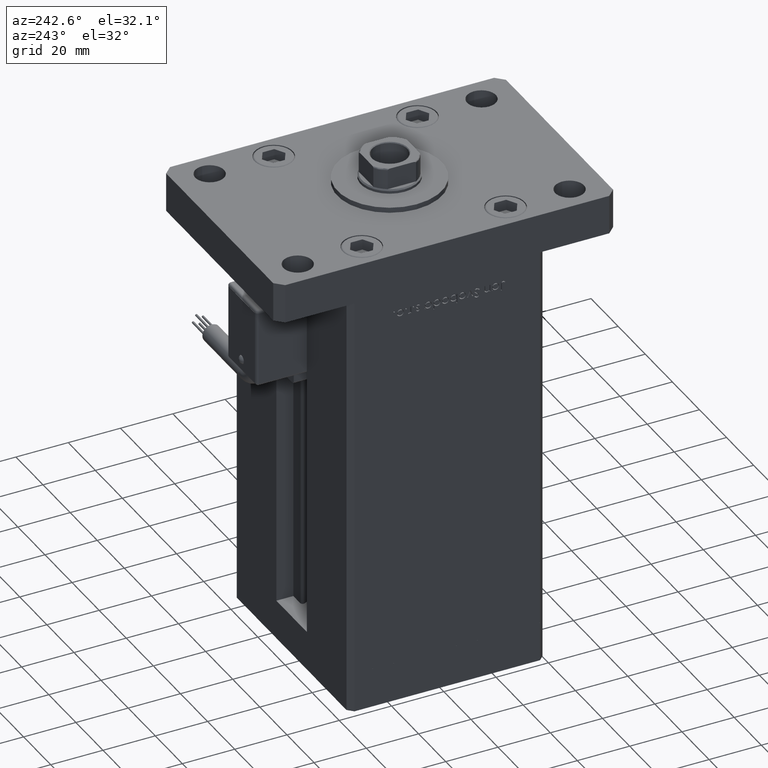
[diagram: clean part render]
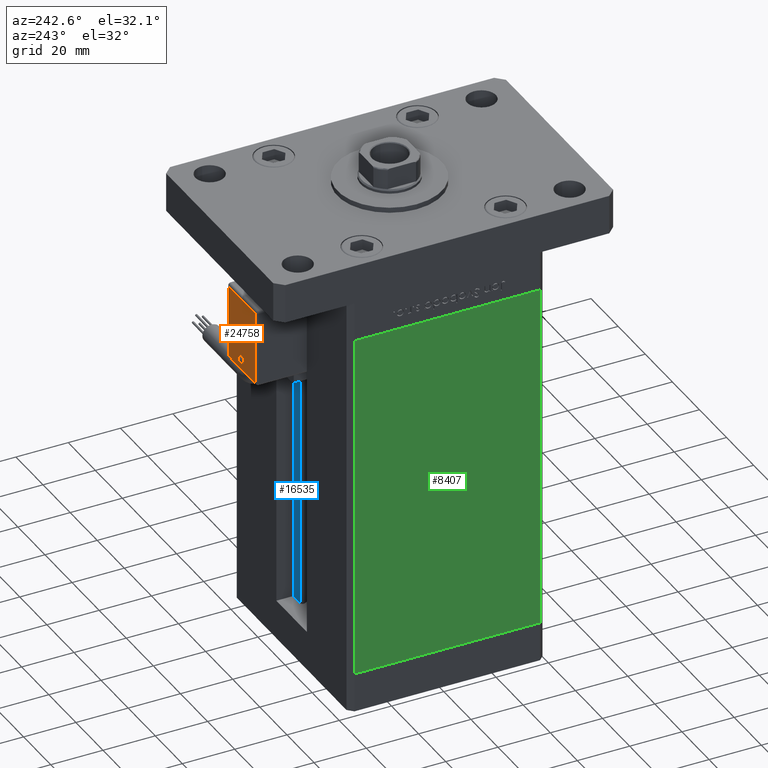
[diagram: same view with three faces highlighted in distinct colors, each labeled with its STEP entity id]
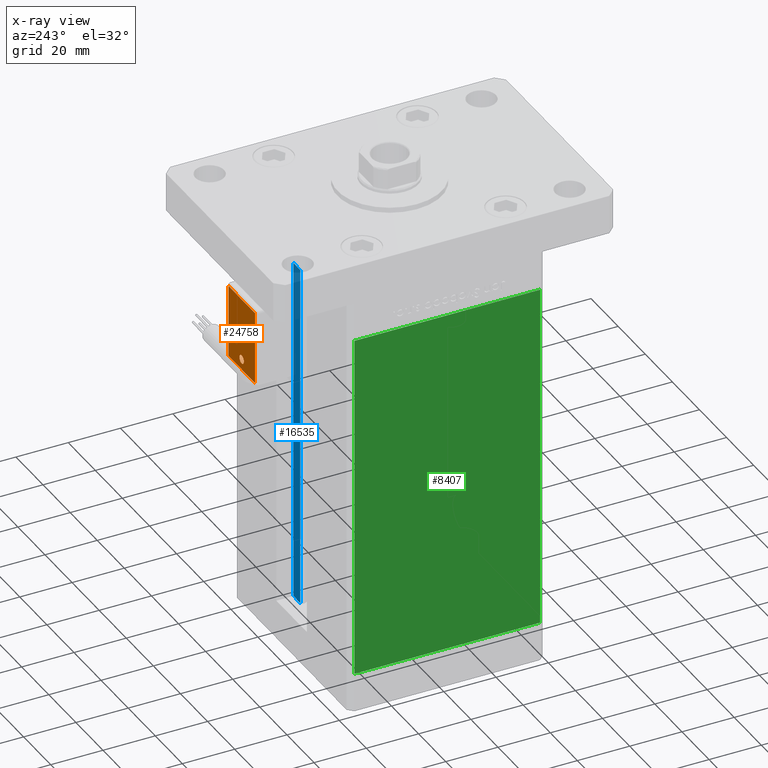
[diagram: x-ray of the same camera — body ghosted, the three highlighted faces saturated]
A machine part, auxiliary view with three faces highlighted in distinct colors.
The next image is the same camera in x-ray (body ghosted, the three faces saturated) — at least one of them is partly hidden behind the body in this view.
Their STEP definitions:

[orange] entity #24758 — the highlighted planar face has unit normal (0, 1, 0).
#587 = AXIS2_PLACEMENT_3D ( 'NONE', #33406, #24259, #29676 ) ;
#998 = LINE ( 'NONE', #35898, #20810 ) ;
#1209 = PLANE ( 'NONE',  #4041 ) ;
#3332 = CIRCLE ( 'NONE', #587, 1.594260539142210220 ) ;
#4041 = AXIS2_PLACEMENT_3D ( 'NONE', #40115, #48716, #27561 ) ;
#4349 = AXIS2_PLACEMENT_3D ( 'NONE', #42710, #38408, #42995 ) ;
#4971 = CARTESIAN_POINT ( 'NONE',  ( -9.799999999999998934, 51.60000000000000142, -54.00000000000000000 ) ) ;
#7389 = CARTESIAN_POINT ( 'NONE',  ( 9.799999999999998934, 51.60000000000000142, -54.00000000000000000 ) ) ;
#8459 = ORIENTED_EDGE ( 'NONE', *, *, #12228, .T. ) ;
#9824 = CIRCLE ( 'NONE', #4349, 1.594260539142210220 ) ;
#10432 = ORIENTED_EDGE ( 'NONE', *, *, #41291, .T. ) ;
#11846 = CARTESIAN_POINT ( 'NONE',  ( 9.799999999999998934, 51.59999999999999432, -26.00000000000000000 ) ) ;
#12228 = EDGE_CURVE ( 'NONE', #23185, #29174, #39158, .T. ) ;
#12698 = LINE ( 'NONE', #11846, #40154 ) ;
#13010 = ORIENTED_EDGE ( 'NONE', *, *, #17123, .T. ) ;
#13372 = ORIENTED_EDGE ( 'NONE', *, *, #22733, .T. ) ;
#13702 = DIRECTION ( 'NONE',  ( -1.000000000000000000, 0.000000000000000000, 0.000000000000000000 ) ) ;
#14137 = ORIENTED_EDGE ( 'NONE', *, *, #34362, .T. ) ;
#17123 = EDGE_CURVE ( 'NONE', #28396, #23185, #12698, .T. ) ;
#20810 = VECTOR ( 'NONE', #43922, 1000.000000000000000 ) ;
#21595 = DIRECTION ( 'NONE',  ( 0.000000000000000000, -2.478176394252581634E-16, 1.000000000000000000 ) ) ;
#22733 = EDGE_CURVE ( 'NONE', #29174, #39684, #47337, .T. ) ;
#23185 = VERTEX_POINT ( 'NONE', #7389 ) ;
#24259 = DIRECTION ( 'NONE',  ( 0.000000000000000000, -1.000000000000000000, -2.478176394252581634E-16 ) ) ;
#24758 = ADVANCED_FACE ( 'NONE', ( #48437, #44989 ), #1209, .T. ) ;
#25030 = VERTEX_POINT ( 'NONE', #54092 ) ;
#27561 = DIRECTION ( 'NONE',  ( 0.000000000000000000, -2.478176394252581634E-16, 1.000000000000000000 ) ) ;
#27756 = VECTOR ( 'NONE', #21595, 1000.000000000000000 ) ;
#27829 = VERTEX_POINT ( 'NONE', #47379 ) ;
#28396 = VERTEX_POINT ( 'NONE', #49863 ) ;
#28907 = ORIENTED_EDGE ( 'NONE', *, *, #40175, .T. ) ;
#29174 = VERTEX_POINT ( 'NONE', #30658 ) ;
#29676 = DIRECTION ( 'NONE',  ( 0.000000000000000000, 0.000000000000000000, 1.000000000000000000 ) ) ;
#30658 = CARTESIAN_POINT ( 'NONE',  ( -9.799999999999998934, 51.60000000000000142, -54.00000000000000000 ) ) ;
#31081 = EDGE_LOOP ( 'NONE', ( #10432, #13010, #8459, #13372 ) ) ;
#33187 = EDGE_LOOP ( 'NONE', ( #28907, #14137 ) ) ;
#33406 = CARTESIAN_POINT ( 'NONE',  ( 1.122044604924999863E-14, 51.60000000000000142, -50.00000000000000000 ) ) ;
#34267 = CARTESIAN_POINT ( 'NONE',  ( -9.799999999999998934, 51.59999999999999432, -26.00000000000000000 ) ) ;
#34362 = EDGE_CURVE ( 'NONE', #25030, #27829, #3332, .T. ) ;
#35898 = CARTESIAN_POINT ( 'NONE',  ( -9.799999999999998934, 51.59999999999999432, -26.00000000000000000 ) ) ;
#37860 = DIRECTION ( 'NONE',  ( 0.000000000000000000, 2.478176394252581634E-16, -1.000000000000000000 ) ) ;
#38408 = DIRECTION ( 'NONE',  ( 0.000000000000000000, -1.000000000000000000, -2.478176394252581634E-16 ) ) ;
#39158 = LINE ( 'NONE', #48033, #44700 ) ;
#39684 = VERTEX_POINT ( 'NONE', #34267 ) ;
#40115 = CARTESIAN_POINT ( 'NONE',  ( -2.664535259099999904E-33, 51.59999999999998721, 1.277460843040079085E-14 ) ) ;
#40154 = VECTOR ( 'NONE', #37860, 1000.000000000000000 ) ;
#40175 = EDGE_CURVE ( 'NONE', #27829, #25030, #9824, .T. ) ;
#41291 = EDGE_CURVE ( 'NONE', #39684, #28396, #998, .T. ) ;
#42710 = CARTESIAN_POINT ( 'NONE',  ( 1.122044604924999863E-14, 51.60000000000000142, -50.00000000000000000 ) ) ;
#42995 = DIRECTION ( 'NONE',  ( 0.000000000000000000, 0.000000000000000000, 1.000000000000000000 ) ) ;
#43922 = DIRECTION ( 'NONE',  ( 1.000000000000000000, 0.000000000000000000, 0.000000000000000000 ) ) ;
#44700 = VECTOR ( 'NONE', #13702, 1000.000000000000000 ) ;
#44989 = FACE_OUTER_BOUND ( 'NONE', #31081, .T. ) ;
#47337 = LINE ( 'NONE', #4971, #27756 ) ;
#47379 = CARTESIAN_POINT ( 'NONE',  ( 1.157444300081134802E-14, 51.60000000000000142, -51.59426053914221200 ) ) ;
#48033 = CARTESIAN_POINT ( 'NONE',  ( 9.799999999999998934, 51.60000000000000142, -54.00000000000000000 ) ) ;
#48437 = FACE_BOUND ( 'NONE', #33187, .T. ) ;
#48716 = DIRECTION ( 'NONE',  ( -0.000000000000000000, 1.000000000000000000, 2.478176394252581634E-16 ) ) ;
#49863 = CARTESIAN_POINT ( 'NONE',  ( 9.799999999999998934, 51.59999999999999432, -26.00000000000000000 ) ) ;
#54092 = CARTESIAN_POINT ( 'NONE',  ( 1.067120849106190655E-14, 51.60000000000000142, -48.40573946085779511 ) ) ;

[blue] entity #16535 — the highlighted planar face has unit normal (0, -1, 0).
#841 = DIRECTION ( 'NONE',  ( 1.000000000000000000, 0.000000000000000000, 0.000000000000000000 ) ) ;
#1484 = FACE_OUTER_BOUND ( 'NONE', #5979, .T. ) ;
#3733 = VECTOR ( 'NONE', #55478, 1000.000000000000000 ) ;
#4554 = VERTEX_POINT ( 'NONE', #18507 ) ;
#5979 = EDGE_LOOP ( 'NONE', ( #29002, #49651, #37450, #21643 ) ) ;
#13926 = VERTEX_POINT ( 'NONE', #43483 ) ;
#14657 = PLANE ( 'NONE',  #53875 ) ;
#14929 = EDGE_CURVE ( 'NONE', #35404, #13926, #22324, .T. ) ;
#16535 = ADVANCED_FACE ( 'NONE', ( #1484 ), #14657, .F. ) ;
#18414 = VECTOR ( 'NONE', #52650, 1000.000000000000000 ) ;
#18507 = CARTESIAN_POINT ( 'NONE',  ( 6.183333333333999704, 30.99999999999999289, 133.5000000000000000 ) ) ;
#19235 = VECTOR ( 'NONE', #841, 1000.000000000000000 ) ;
#19565 = CARTESIAN_POINT ( 'NONE',  ( 11.25000000000000000, 30.99999999999999289, 133.5000000000000000 ) ) ;
#21123 = VERTEX_POINT ( 'NONE', #19565 ) ;
#21643 = ORIENTED_EDGE ( 'NONE', *, *, #55327, .F. ) ;
#22324 = LINE ( 'NONE', #52939, #19235 ) ;
#25760 = VECTOR ( 'NONE', #51391, 1000.000000000000000 ) ;
#26052 = LINE ( 'NONE', #40026, #18414 ) ;
#29002 = ORIENTED_EDGE ( 'NONE', *, *, #55846, .F. ) ;
#29429 = LINE ( 'NONE', #33432, #3733 ) ;
#32118 = DIRECTION ( 'NONE',  ( 0.000000000000000000, -1.000000000000000000, 0.000000000000000000 ) ) ;
#33432 = CARTESIAN_POINT ( 'NONE',  ( 6.183333333333999704, 30.99999999999999289, 0.000000000000000000 ) ) ;
#35404 = VERTEX_POINT ( 'NONE', #55712 ) ;
#37450 = ORIENTED_EDGE ( 'NONE', *, *, #48332, .T. ) ;
#40026 = CARTESIAN_POINT ( 'NONE',  ( 0.000000000000000000, 30.99999999999999289, 133.5000000000000000 ) ) ;
#42239 = CARTESIAN_POINT ( 'NONE',  ( 11.25000000000000000, 30.99999999999999289, 0.000000000000000000 ) ) ;
#43483 = CARTESIAN_POINT ( 'NONE',  ( 11.25000000000000000, 30.99999999999999289, 0.000000000000000000 ) ) ;
#45254 = DIRECTION ( 'NONE',  ( 0.000000000000000000, -0.000000000000000000, -1.000000000000000000 ) ) ;
#46527 = LINE ( 'NONE', #42239, #25760 ) ;
#48332 = EDGE_CURVE ( 'NONE', #35404, #4554, #29429, .T. ) ;
#49651 = ORIENTED_EDGE ( 'NONE', *, *, #14929, .F. ) ;
#51391 = DIRECTION ( 'NONE',  ( -0.000000000000000000, -0.000000000000000000, 1.000000000000000000 ) ) ;
#52650 = DIRECTION ( 'NONE',  ( -1.000000000000000000, 0.000000000000000000, 0.000000000000000000 ) ) ;
#52939 = CARTESIAN_POINT ( 'NONE',  ( 6.183333333333999704, 30.99999999999999289, 0.000000000000000000 ) ) ;
#53863 = CARTESIAN_POINT ( 'NONE',  ( 6.183333333333999704, 30.99999999999999289, 0.000000000000000000 ) ) ;
#53875 = AXIS2_PLACEMENT_3D ( 'NONE', #53863, #32118, #45254 ) ;
#55327 = EDGE_CURVE ( 'NONE', #21123, #4554, #26052, .T. ) ;
#55478 = DIRECTION ( 'NONE',  ( -0.000000000000000000, -0.000000000000000000, 1.000000000000000000 ) ) ;
#55712 = CARTESIAN_POINT ( 'NONE',  ( 6.183333333333999704, 30.99999999999999289, 0.000000000000000000 ) ) ;
#55846 = EDGE_CURVE ( 'NONE', #13926, #21123, #46527, .T. ) ;

[green] entity #8407 — the highlighted planar face has unit normal (1, 0, 0).
#1071 = VECTOR ( 'NONE', #32749, 1000.000000000000000 ) ;
#1960 = DIRECTION ( 'NONE',  ( -0.000000000000000000, -0.000000000000000000, -1.000000000000000000 ) ) ;
#7991 = CARTESIAN_POINT ( 'NONE',  ( -42.50000000000000711, 35.50000000000001421, 0.000000000000000000 ) ) ;
#8407 = ADVANCED_FACE ( 'NONE', ( #51975 ), #39072, .F. ) ;
#8762 = DIRECTION ( 'NONE',  ( 1.000000000000000000, 2.931927001650941360E-16, -0.000000000000000000 ) ) ;
#9013 = VERTEX_POINT ( 'NONE', #27709 ) ;
#11535 = CARTESIAN_POINT ( 'NONE',  ( -42.50000000000000711, 35.50000000000001421, 0.000000000000000000 ) ) ;
#12494 = CARTESIAN_POINT ( 'NONE',  ( -42.50000000000000711, 35.50000000000001421, 133.5000000000000000 ) ) ;
#13100 = ORIENTED_EDGE ( 'NONE', *, *, #38110, .T. ) ;
#13909 = EDGE_CURVE ( 'NONE', #9013, #15561, #44042, .T. ) ;
#14722 = ORIENTED_EDGE ( 'NONE', *, *, #19583, .T. ) ;
#14734 = LINE ( 'NONE', #27898, #1071 ) ;
#15561 = VERTEX_POINT ( 'NONE', #27895 ) ;
#17293 = EDGE_LOOP ( 'NONE', ( #13100, #29836, #42256, #14722 ) ) ;
#18077 = AXIS2_PLACEMENT_3D ( 'NONE', #12494, #8762, #25653 ) ;
#19583 = EDGE_CURVE ( 'NONE', #9013, #36070, #54333, .T. ) ;
#20476 = VERTEX_POINT ( 'NONE', #40308 ) ;
#25653 = DIRECTION ( 'NONE',  ( -2.931927001650941360E-16, 1.000000000000000000, 0.000000000000000000 ) ) ;
#27709 = CARTESIAN_POINT ( 'NONE',  ( -42.50000000000000711, 35.50000000000001421, 133.5000000000000000 ) ) ;
#27895 = CARTESIAN_POINT ( 'NONE',  ( -42.49999999999998579, -35.50000000000000711, 133.5000000000000000 ) ) ;
#27898 = CARTESIAN_POINT ( 'NONE',  ( -42.49999999999998579, -35.50000000000000711, 133.5000000000000000 ) ) ;
#28987 = DIRECTION ( 'NONE',  ( 2.931927001650941360E-16, -1.000000000000000000, 0.000000000000000000 ) ) ;
#29836 = ORIENTED_EDGE ( 'NONE', *, *, #54860, .F. ) ;
#32749 = DIRECTION ( 'NONE',  ( -0.000000000000000000, -0.000000000000000000, -1.000000000000000000 ) ) ;
#36070 = VERTEX_POINT ( 'NONE', #7991 ) ;
#38110 = EDGE_CURVE ( 'NONE', #36070, #20476, #50728, .T. ) ;
#39072 = PLANE ( 'NONE',  #18077 ) ;
#40308 = CARTESIAN_POINT ( 'NONE',  ( -42.49999999999998579, -35.50000000000000711, 0.000000000000000000 ) ) ;
#42256 = ORIENTED_EDGE ( 'NONE', *, *, #13909, .F. ) ;
#44042 = LINE ( 'NONE', #53209, #47529 ) ;
#44831 = VECTOR ( 'NONE', #1960, 1000.000000000000000 ) ;
#47502 = DIRECTION ( 'NONE',  ( 2.931927001650941360E-16, -1.000000000000000000, 0.000000000000000000 ) ) ;
#47529 = VECTOR ( 'NONE', #47502, 1000.000000000000000 ) ;
#49184 = CARTESIAN_POINT ( 'NONE',  ( -42.50000000000000711, 35.50000000000001421, 133.5000000000000000 ) ) ;
#50728 = LINE ( 'NONE', #11535, #50839 ) ;
#50839 = VECTOR ( 'NONE', #28987, 1000.000000000000000 ) ;
#51975 = FACE_OUTER_BOUND ( 'NONE', #17293, .T. ) ;
#53209 = CARTESIAN_POINT ( 'NONE',  ( -42.50000000000000711, 35.50000000000001421, 133.5000000000000000 ) ) ;
#54333 = LINE ( 'NONE', #49184, #44831 ) ;
#54860 = EDGE_CURVE ( 'NONE', #15561, #20476, #14734, .T. ) ;